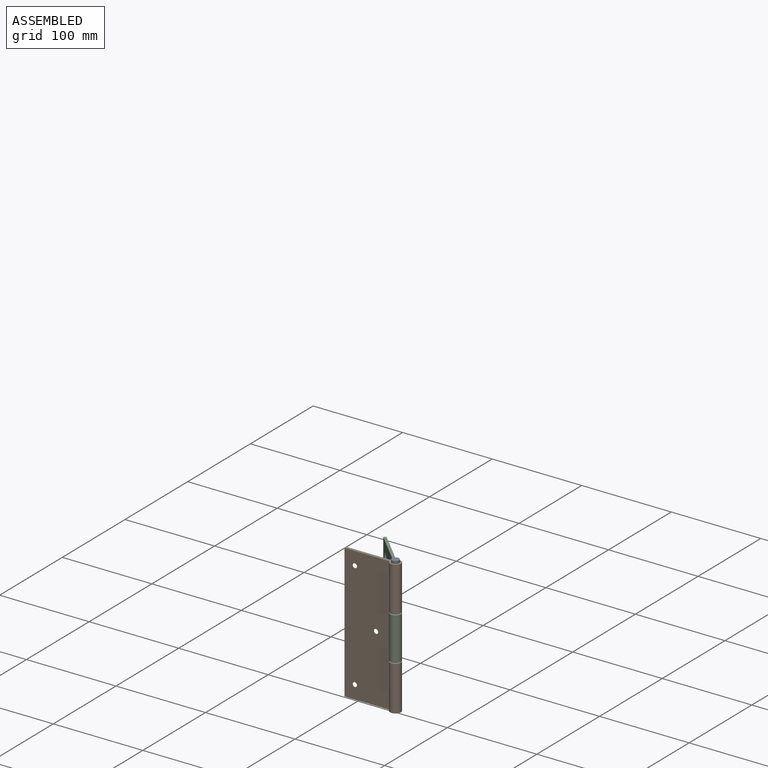
[diagram: assembled view]
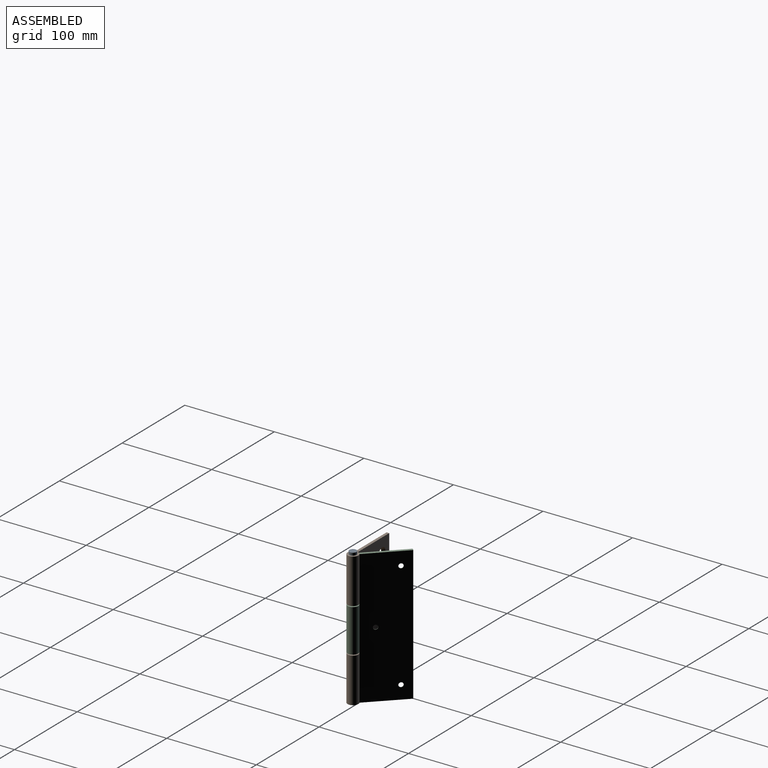
[diagram: assembled view, second angle]
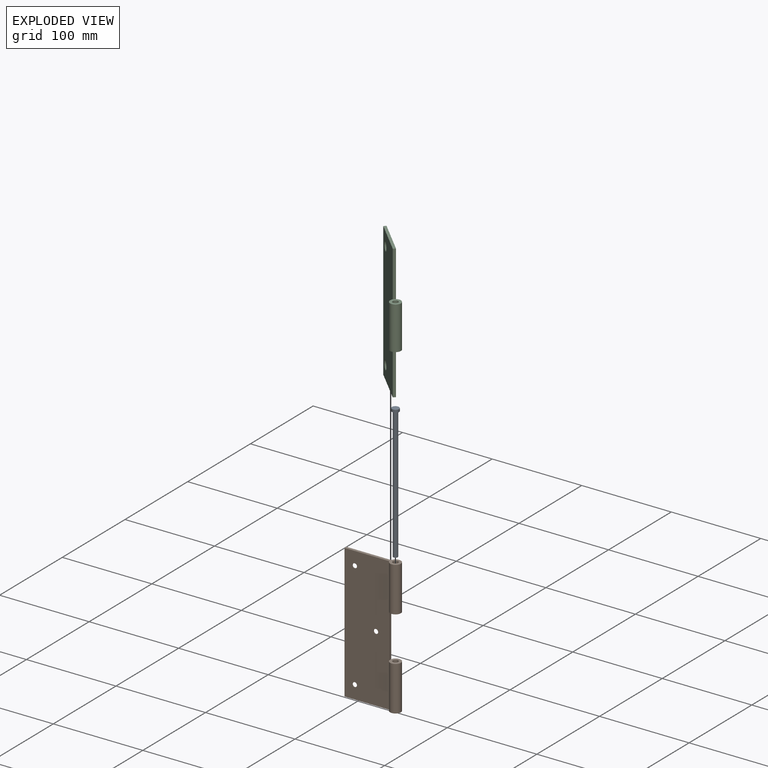
[diagram: exploded view]
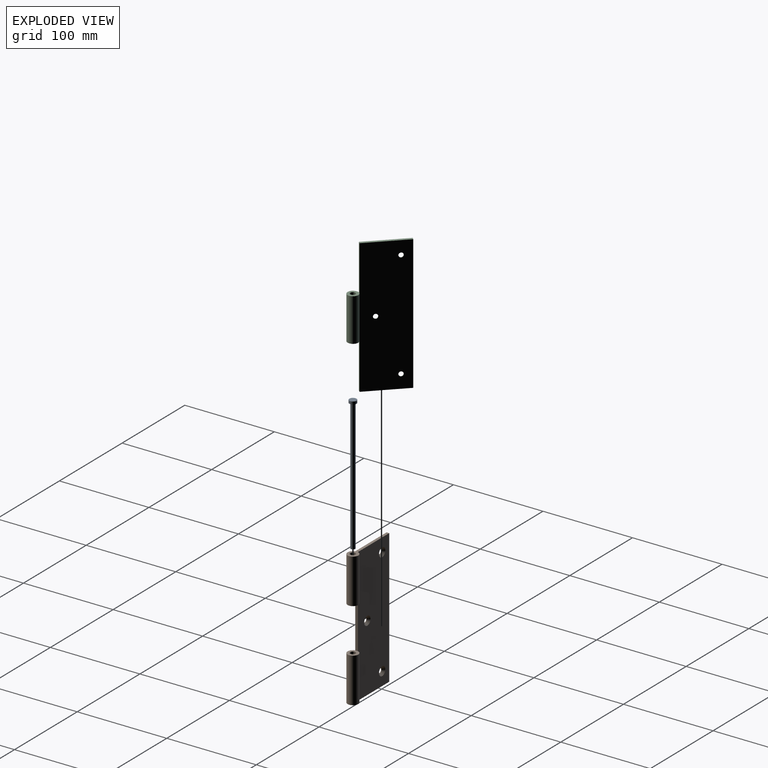
[diagram: exploded view, second angle]
ASSEMBLY  parts=3 mates=2
PART A: 5 faces, bbox 8x8x150 mm
  f0: cylinder r=2.5mm len=147mm, axis (0,0,-1), area 2309.1mm2, adj f1,f3
  f1: plane 5x5mm, normal (0,0,1), area 19.6mm2, adj f0
  f2: cylinder r=4mm len=8mm, axis (0,0,-1), area 75.4mm2, adj f3,f4
  f3: plane 8x8mm, normal (0,0,1), area 30.6mm2, adj f0,f2
  f4: plane 8x8mm, normal (0,0,-1), area 50.3mm2, adj f2
PART B: 18 faces, bbox 61.8x12x150 mm
  f0: plane 150x3mm, normal (-1,0,0), area 166.1mm2, adj f1,f2,f4,f5,f6,f7,f15,f16
  f1: plane 150x50mm, normal (0,1,0), area 7441.1mm2, adj f0,f3,f4,f5,f9,f11,f13
  f2: plane 150x50mm, normal (0,-1,0), area 7264.4mm2, adj f0,f3,f4,f5,f10,f12,f14
  f3: plane 150x3mm, normal (1,0,0), area 450mm2, adj f1,f2,f4,f5
  f4: plane 61.83x12mm, normal (0,0,1), area 234.5mm2, adj f0,f1,f2,f3,f16,f17
  f5: plane 61.83x12mm, normal (0,0,-1), area 234.5mm2, adj f0,f1,f2,f3,f7,f8
  f6: plane 12x11.83mm, normal (0,0,1), area 84.5mm2, adj f0,f7,f8
  f7: cylinder r=6mm len=50mm, axis (0,0,-1), area 1741.7mm2, adj f0,f5,f6
  f8: cylinder r=3mm len=50mm, axis (0,0,-1), area 942.5mm2, adj f5,f6
  f9: cylinder r=2.5mm len=5mm, axis (0,-1,0), area 7.9mm2, adj f1,f10
  f10: cone r=2.5mm half-angle=45deg, axis (0,-1,0), area 83.3mm2, adj f2,f9
  f11: cylinder r=2.5mm len=5mm, axis (0,-1,0), area 7.9mm2, adj f1,f12
  f12: cone r=2.5mm half-angle=45deg, axis (0,-1,0), area 83.3mm2, adj f2,f11
  f13: cylinder r=2.5mm len=5mm, axis (0,-1,0), area 7.9mm2, adj f1,f14
  f14: cone r=2.5mm half-angle=45deg, axis (0,-1,0), area 83.3mm2, adj f2,f13
  f15: plane 12x11.83mm, normal (0,0,-1), area 84.5mm2, adj f0,f16,f17
  f16: cylinder r=6mm len=50mm, axis (0,0,-1), area 1741.7mm2, adj f0,f4,f15
  f17: cylinder r=3mm len=50mm, axis (0,0,-1), area 942.5mm2, adj f4,f15
PART C: 17 faces, bbox 61.8x12x150 mm
  f0: plane 51x3mm, normal (-1,0,0), area 153mm2, adj f1,f3,f6,f10
  f1: plane 150x50mm, normal (0,1,0), area 7441.1mm2, adj f0,f2,f4,f5,f6,f8,f9,f10
  f2: plane 51x3mm, normal (-1,0,0), area 153mm2, adj f1,f3,f5,f9
  f3: plane 150x50mm, normal (0,-1,0), area 7264.3mm2, adj f0,f2,f4,f5,f6,f8,f9,f10
  f4: plane 150x3mm, normal (1,0,0), area 450mm2, adj f1,f3,f5,f6
  f5: plane 50x3mm, normal (0,0,1), area 150mm2, adj f1,f2,f3,f4
  f6: plane 50x3mm, normal (0,0,-1), area 150mm2, adj f0,f1,f3,f4
  f7: cylinder r=3mm len=48mm, axis (0,0,-1), area 904.8mm2, adj f9,f10
  f8: cylinder r=6mm len=48mm, axis (0,0,-1), area 1664mm2, adj f1,f3,f9,f10
  f9: plane 12x11.81mm, normal (0,0,1), area 84.4mm2, adj f1,f2,f3,f7,f8
  f10: plane 12x11.81mm, normal (0,0,-1), area 84.4mm2, adj f0,f1,f3,f7,f8
  f11: cylinder r=2.5mm len=5mm, axis (0,-1,0), area 7.9mm2, adj f1,f12
  f12: cone r=2.5mm half-angle=45deg, axis (0,-1,0), area 83.3mm2, adj f3,f11
  f13: cylinder r=2.5mm len=5mm, axis (0,-1,0), area 7.9mm2, adj f1,f14
  f14: cone r=2.5mm half-angle=45deg, axis (0,-1,0), area 83.3mm2, adj f3,f13
  f15: cylinder r=2.5mm len=5mm, axis (0,-1,0), area 7.9mm2, adj f1,f16
  f16: cone r=2.5mm half-angle=45deg, axis (0,-1,0), area 83.3mm2, adj f3,f15
PLACE A rot(axis=(0,1,0),180deg) t=(-156.64,-101.71,204.21)mm
PLACE B rot(axis=(0,0,-1),180deg) t=(-162.47,-100.21,51.21)mm
PLACE C rot(axis=(0.38,0.92,0),180deg) t=(-161.81,-98.67,201.21)mm
MATE revolute C.f7 <-> B.f7  axis (0,0,-1) through (-156.64,-101.71,102.21)mm
MATE cylindrical A.f0 <-> B.f7  axis (0,0,1) through (-156.64,-101.71,204.21)mm
